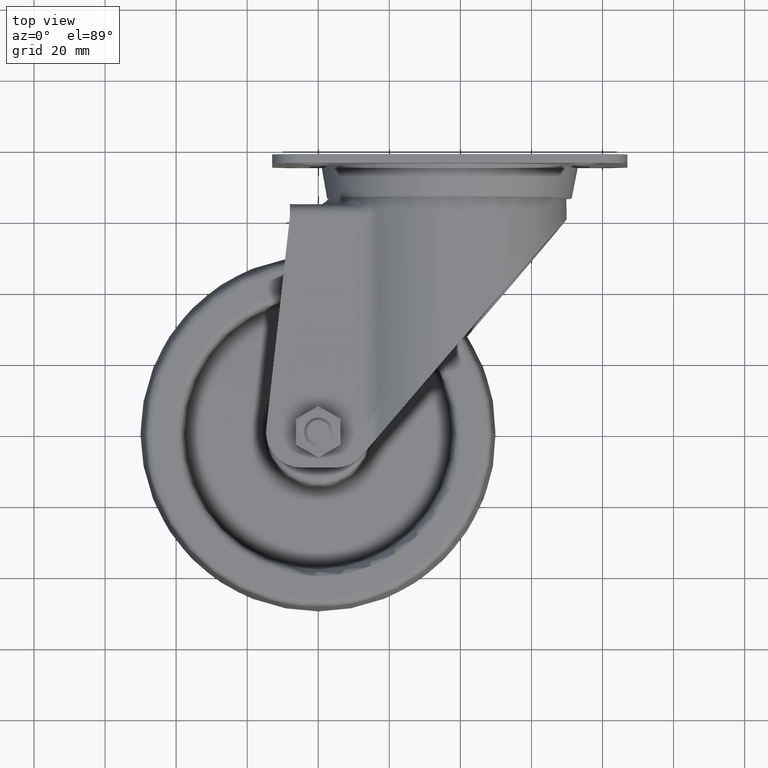
[diagram: clean part render]
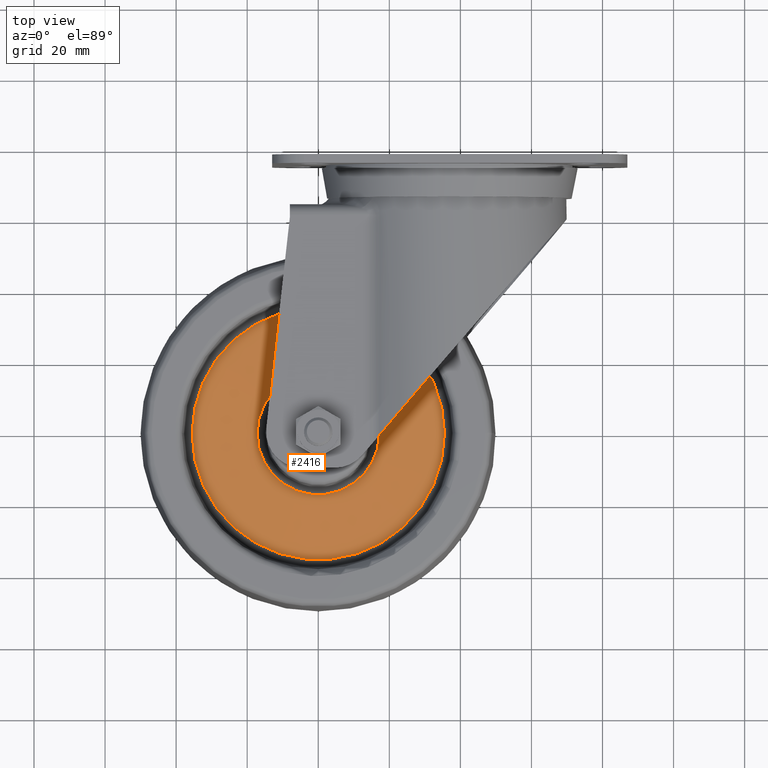
[diagram: same view with one face highlighted and labeled with its STEP entity id]
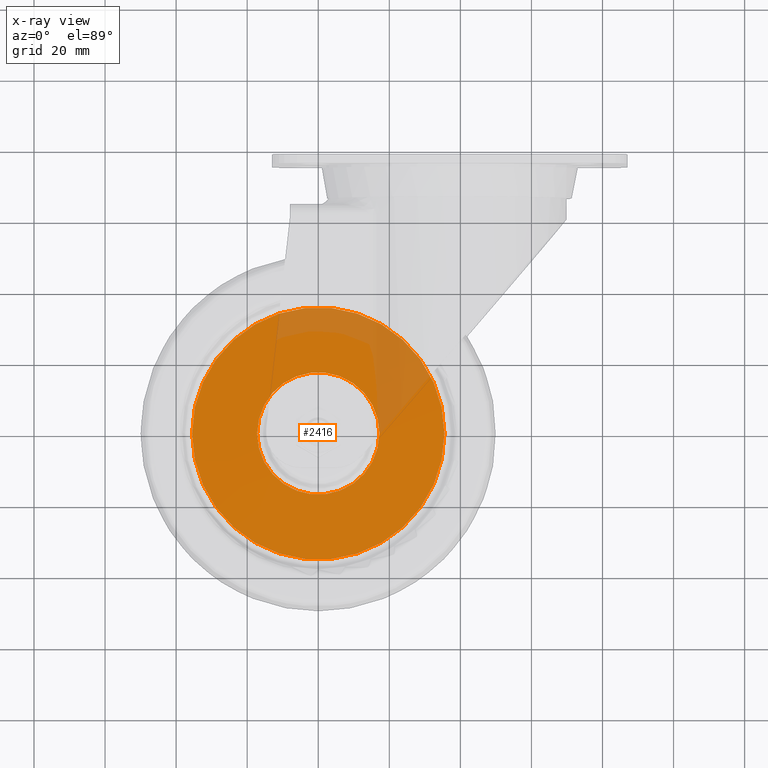
[diagram: x-ray of the same camera — body ghosted, the highlighted face saturated]
A machine part, top view. The second image highlights one B-rep face of the part: STEP entity #2416.
The next image is the same camera in x-ray: the body ghosted, the highlighted face saturated — about 15% of this face is hidden behind the body in this view.
In plain terms, the highlighted conical surface has half-angle 87 deg.
Its self-contained STEP definition (entity closure, byte-faithful):
#61=CONICAL_SURFACE('',#2715,26.3533888425374,1.51843644923507);
#286=FACE_OUTER_BOUND('',#446,.T.);
#446=EDGE_LOOP('',(#2032,#2033,#2034,#2035,#2036,#2037));
#603=CIRCLE('',#2713,35.5002706639117);
#604=CIRCLE('',#2714,35.5002706639117);
#605=CIRCLE('',#2716,17.206507021163);
#606=CIRCLE('',#2717,17.206507021163);
#757=LINE('',#4385,#891);
#891=VECTOR('',#3397,26.3533888425374);
#1088=VERTEX_POINT('',#4378);
#1089=VERTEX_POINT('',#4380);
#1090=VERTEX_POINT('',#4384);
#1091=VERTEX_POINT('',#4386);
#1407=EDGE_CURVE('',#1088,#1089,#603,.T.);
#1408=EDGE_CURVE('',#1089,#1088,#604,.T.);
#1409=EDGE_CURVE('',#1089,#1090,#757,.T.);
#1410=EDGE_CURVE('',#1090,#1091,#605,.T.);
#1411=EDGE_CURVE('',#1091,#1090,#606,.T.);
#2032=ORIENTED_EDGE('',*,*,#1408,.F.);
#2033=ORIENTED_EDGE('',*,*,#1409,.T.);
#2034=ORIENTED_EDGE('',*,*,#1410,.T.);
#2035=ORIENTED_EDGE('',*,*,#1411,.T.);
#2036=ORIENTED_EDGE('',*,*,#1409,.F.);
#2037=ORIENTED_EDGE('',*,*,#1407,.F.);
#2416=ADVANCED_FACE('',(#286),#61,.T.);
#2713=AXIS2_PLACEMENT_3D('',#4381,#3391,#3392);
#2714=AXIS2_PLACEMENT_3D('',#4382,#3393,#3394);
#2715=AXIS2_PLACEMENT_3D('',#4383,#3395,#3396);
#2716=AXIS2_PLACEMENT_3D('',#4387,#3398,#3399);
#2717=AXIS2_PLACEMENT_3D('',#4388,#3400,#3401);
#3391=DIRECTION('center_axis',(0.,0.,-1.));
#3392=DIRECTION('ref_axis',(1.,0.,0.));
#3393=DIRECTION('center_axis',(0.,0.,-1.));
#3394=DIRECTION('ref_axis',(1.,0.,0.));
#3395=DIRECTION('center_axis',(0.,0.,-1.));
#3396=DIRECTION('ref_axis',(1.,0.,0.));
#3397=DIRECTION('',(0.998629534754574,-1.2229684632712E-16,0.0523359562429404));
#3398=DIRECTION('center_axis',(0.,0.,-1.));
#3399=DIRECTION('ref_axis',(1.,0.,0.));
#3400=DIRECTION('center_axis',(0.,0.,-1.));
#3401=DIRECTION('ref_axis',(1.,0.,0.));
#4378=CARTESIAN_POINT('',(35.5002706639117,-4.34752928374242E-15,2.85950965055749));
#4380=CARTESIAN_POINT('',(-35.5002706639117,4.34738570174404E-15,2.85950965055749));
#4381=CARTESIAN_POINT('Origin',(0.,0.,2.85950965055749));
#4382=CARTESIAN_POINT('Origin',(0.,0.,2.85950965055749));
#4383=CARTESIAN_POINT('Origin',(0.,0.,3.33887741418014));
#4384=CARTESIAN_POINT('',(-17.206507021163,-2.10711978252056E-15,3.81824517780279));
#4385=CARTESIAN_POINT('',(-26.3533888425374,3.2273593292699E-15,3.33887741418014));
#4386=CARTESIAN_POINT('',(17.206507021163,-2.10718937479737E-15,3.81824517780279));
#4387=CARTESIAN_POINT('Origin',(0.,0.,3.81824517780279));
#4388=CARTESIAN_POINT('Origin',(0.,0.,3.81824517780279));